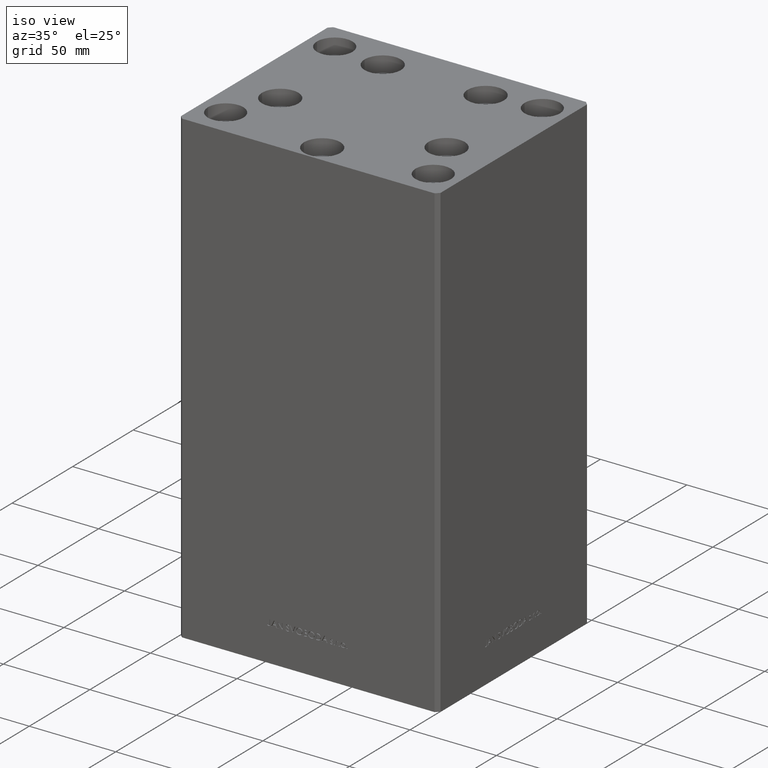
[diagram: clean part render]
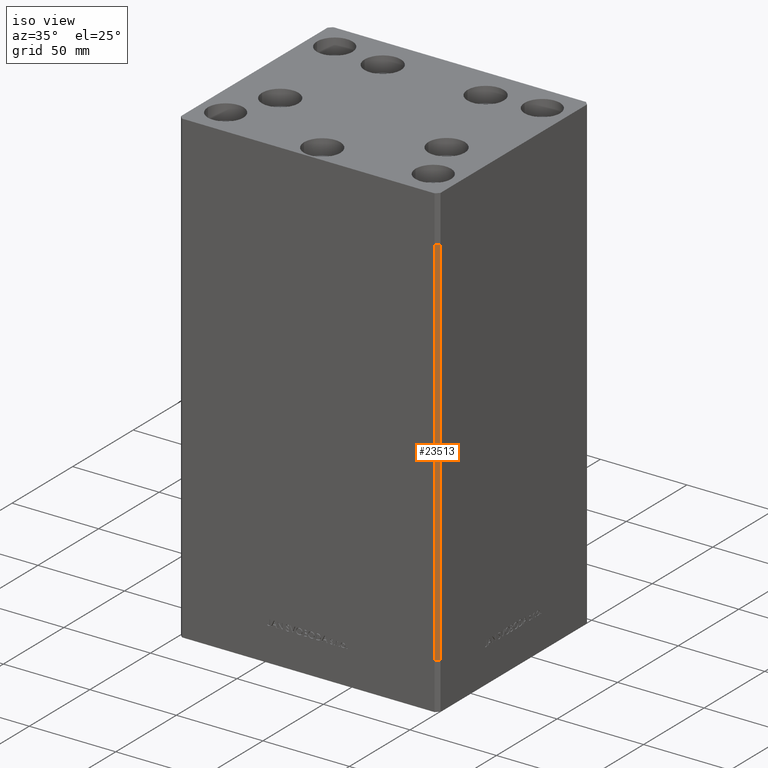
[diagram: same view with one face highlighted and labeled with its STEP entity id]
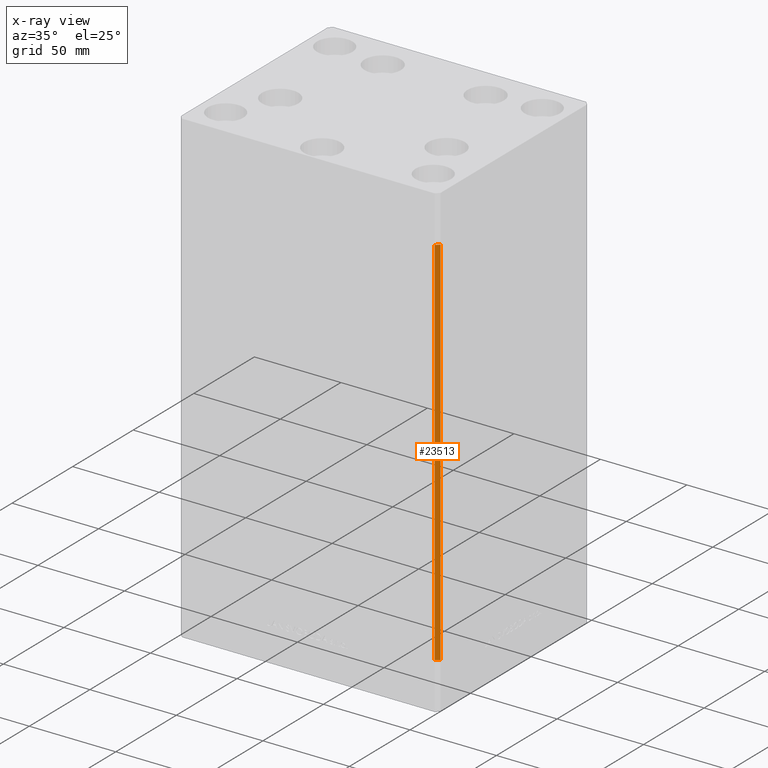
[diagram: x-ray of the same camera — body ghosted, the highlighted face saturated]
A machine part, iso view. The second image highlights one B-rep face of the part: STEP entity #23513.
The next image is the same camera in x-ray: the body ghosted, the highlighted face saturated — about 0% of this face is hidden behind the body in this view.
In plain terms, the highlighted planar face has unit normal (0.7071, -0.7071, 0).
Its self-contained STEP definition (entity closure, byte-faithful):
#1512 = DIRECTION ( 'NONE',  ( -0.7071067811865474617, -0.7071067811865474617, 0.000000000000000000 ) ) ;
#1671 = AXIS2_PLACEMENT_3D ( 'NONE', #16013, #39018, #20463 ) ;
#1765 = CARTESIAN_POINT ( 'NONE',  ( 74.99999999999998579, -60.50000000000000000, 0.000000000000000000 ) ) ;
#1864 = EDGE_CURVE ( 'NONE', #48597, #17991, #28660, .T. ) ;
#5061 = EDGE_LOOP ( 'NONE', ( #17558, #17319, #45611, #7123 ) ) ;
#6351 = DIRECTION ( 'NONE',  ( -0.000000000000000000, -0.000000000000000000, -1.000000000000000000 ) ) ;
#7123 = ORIENTED_EDGE ( 'NONE', *, *, #17983, .T. ) ;
#8287 = VECTOR ( 'NONE', #13926, 1000.000000000000114 ) ;
#8327 = LINE ( 'NONE', #41988, #30885 ) ;
#13117 = VERTEX_POINT ( 'NONE', #36259 ) ;
#13926 = DIRECTION ( 'NONE',  ( -0.7071067811865474617, -0.7071067811865474617, 0.000000000000000000 ) ) ;
#16013 = CARTESIAN_POINT ( 'NONE',  ( 74.99999999999998579, -60.50000000000000000, 217.0000000000000000 ) ) ;
#16700 = CARTESIAN_POINT ( 'NONE',  ( 74.99999999999998579, -60.50000000000000000, 217.0000000000000000 ) ) ;
#17027 = CARTESIAN_POINT ( 'NONE',  ( 74.99999999999998579, -60.50000000000000000, 217.0000000000000000 ) ) ;
#17164 = LINE ( 'NONE', #47340, #8287 ) ;
#17319 = ORIENTED_EDGE ( 'NONE', *, *, #1864, .F. ) ;
#17558 = ORIENTED_EDGE ( 'NONE', *, *, #47618, .F. ) ;
#17983 = EDGE_CURVE ( 'NONE', #34734, #13117, #8327, .T. ) ;
#17991 = VERTEX_POINT ( 'NONE', #19477 ) ;
#19477 = CARTESIAN_POINT ( 'NONE',  ( 74.99999999999998579, -60.50000000000000000, 0.000000000000000000 ) ) ;
#20463 = DIRECTION ( 'NONE',  ( 0.7071067811865474617, 0.7071067811865474617, 0.000000000000000000 ) ) ;
#23431 = DIRECTION ( 'NONE',  ( -0.000000000000000000, -0.000000000000000000, -1.000000000000000000 ) ) ;
#23513 = ADVANCED_FACE ( 'NONE', ( #46193 ), #24420, .T. ) ;
#24299 = LINE ( 'NONE', #1765, #34317 ) ;
#24420 = PLANE ( 'NONE',  #1671 ) ;
#28660 = LINE ( 'NONE', #17027, #37688 ) ;
#30885 = VECTOR ( 'NONE', #23431, 1000.000000000000000 ) ;
#33062 = EDGE_CURVE ( 'NONE', #48597, #34734, #17164, .T. ) ;
#34317 = VECTOR ( 'NONE', #1512, 1000.000000000000114 ) ;
#34734 = VERTEX_POINT ( 'NONE', #38043 ) ;
#36259 = CARTESIAN_POINT ( 'NONE',  ( 72.99999999999998579, -62.50000000000000000, 0.000000000000000000 ) ) ;
#37688 = VECTOR ( 'NONE', #6351, 1000.000000000000000 ) ;
#38043 = CARTESIAN_POINT ( 'NONE',  ( 72.99999999999998579, -62.50000000000000000, 217.0000000000000000 ) ) ;
#39018 = DIRECTION ( 'NONE',  ( 0.7071067811865475727, -0.7071067811865475727, 0.000000000000000000 ) ) ;
#41988 = CARTESIAN_POINT ( 'NONE',  ( 72.99999999999998579, -62.50000000000000000, 217.0000000000000000 ) ) ;
#45611 = ORIENTED_EDGE ( 'NONE', *, *, #33062, .T. ) ;
#46193 = FACE_OUTER_BOUND ( 'NONE', #5061, .T. ) ;
#47340 = CARTESIAN_POINT ( 'NONE',  ( 74.99999999999998579, -60.50000000000000000, 217.0000000000000000 ) ) ;
#47618 = EDGE_CURVE ( 'NONE', #17991, #13117, #24299, .T. ) ;
#48597 = VERTEX_POINT ( 'NONE', #16700 ) ;